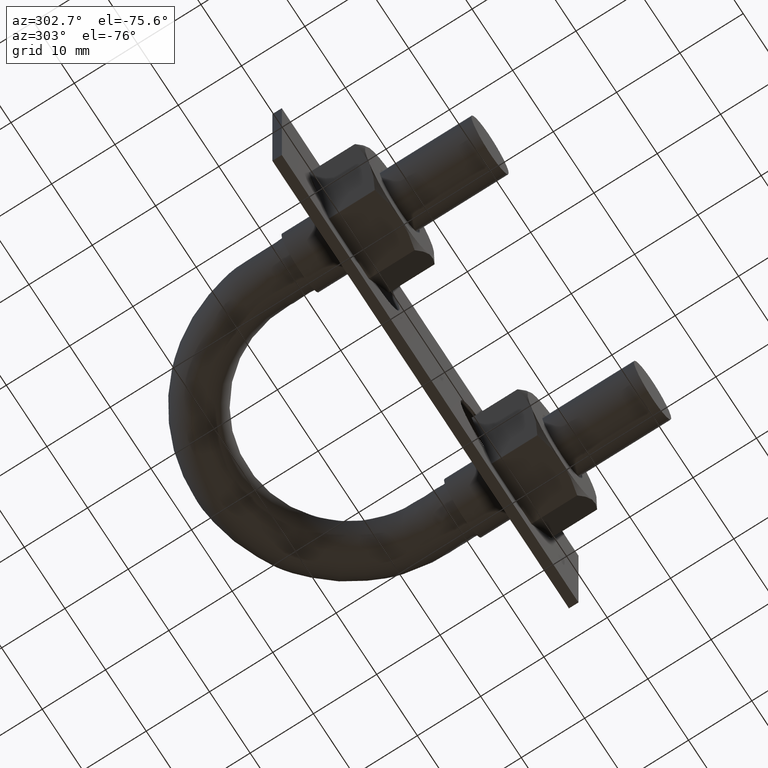
[diagram: clean part render]
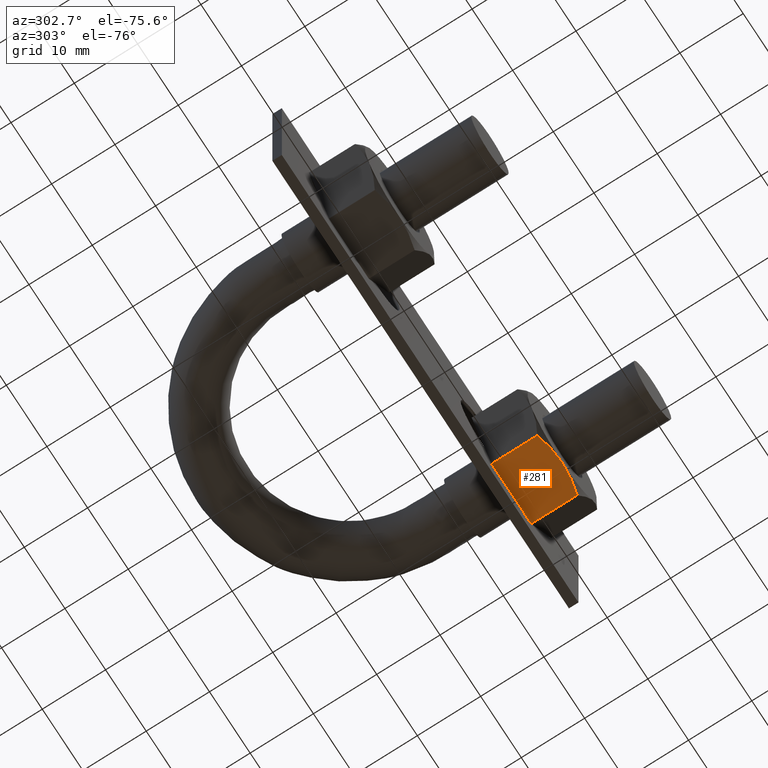
[diagram: same view with one face highlighted and labeled with its STEP entity id]
A machine part, auxiliary view. The second image highlights one B-rep face of the part: STEP entity #281.
In plain terms, the highlighted planar face has unit normal (-0, 0, 1).
Its self-contained STEP definition (entity closure, byte-faithful):
#281 = ADVANCED_FACE( '', ( #431 ), #432, .F. );
#431 = FACE_OUTER_BOUND( '', #751, .T. );
#432 = PLANE( '', #752 );
#751 = EDGE_LOOP( '', ( #1239, #1240, #1241, #1242, #1243 ) );
#752 = AXIS2_PLACEMENT_3D( '', #1244, #1245, #1246 );
#1239 = ORIENTED_EDGE( '', *, *, #1448, .F. );
#1240 = ORIENTED_EDGE( '', *, *, #1449, .F. );
#1241 = ORIENTED_EDGE( '', *, *, #1447, .F. );
#1242 = ORIENTED_EDGE( '', *, *, #1427, .F. );
#1243 = ORIENTED_EDGE( '', *, *, #1450, .F. );
#1244 = CARTESIAN_POINT( '', ( 24.9074772881118, -7.70000000000000, -8.50000000000000 ) );
#1245 = DIRECTION( '', ( -3.74915180455534E-033, 2.29561756065155E-049, 1.00000000000000 ) );
#1246 = DIRECTION( '', ( 6.12303176911189E-017, 1.00000000000000, 0.000000000000000 ) );
#1427 = EDGE_CURVE( '', #1675, #1677, #1678, .T. );
#1447 = EDGE_CURVE( '', #1677, #1705, #1707, .F. );
#1448 = EDGE_CURVE( '', #1645, #1708, #1709, .T. );
#1449 = EDGE_CURVE( '', #1705, #1645, #1710, .T. );
#1450 = EDGE_CURVE( '', #1708, #1675, #1711, .T. );
#1645 = VERTEX_POINT( '', #2057 );
#1675 = VERTEX_POINT( '', #2104 );
#1677 = VERTEX_POINT( '', #2106 );
#1678 = LINE( '', #2107, #2108 );
#1705 = VERTEX_POINT( '', #2173 );
#1707 = LINE( '', #2175, #2176 );
#1708 = VERTEX_POINT( '', #2177 );
#1709 = B_SPLINE_CURVE_WITH_KNOTS( '', 3, ( #2178, #2179, #2180, #2181, #2182, #2183 ), .UNSPECIFIED., .F., .F., ( 4, 2, 4 ), ( 0.0156840426092177, 0.0181633795370703, 0.0206427164649230 ), .UNSPECIFIED. );
#1710 = B_SPLINE_CURVE_WITH_KNOTS( '', 3, ( #2184, #2185, #2186, #2187, #2188, #2189 ), .UNSPECIFIED., .F., .F., ( 4, 2, 4 ), ( 0.0107224888714710, 0.0132032657403443, 0.0156840426092177 ), .UNSPECIFIED. );
#1711 = LINE( '', #2190, #2191 );
#2057 = CARTESIAN_POINT( '', ( 20.0000000000000, -15.7000000000000, -8.50000000000000 ) );
#2104 = CARTESIAN_POINT( '', ( 24.8774993593029, -7.70000000000000, -8.50000000000000 ) );
#2106 = CARTESIAN_POINT( '', ( 15.1225006406971, -7.70000000000000, -8.50000000000000 ) );
#2107 = CARTESIAN_POINT( '', ( 10.2000000000000, -7.70000000000000, -8.50000000000000 ) );
#2108 = VECTOR( '', #2429, 1000.00000000000 );
#2173 = CARTESIAN_POINT( '', ( 15.1225006406971, -14.9494446500535, -8.50000000000000 ) );
#2175 = CARTESIAN_POINT( '', ( 15.1225006406971, -7.70000000000000, -8.50000000000000 ) );
#2176 = VECTOR( '', #2454, 1000.00000000000 );
#2177 = CARTESIAN_POINT( '', ( 24.8774993593029, -14.9494446500535, -8.50000000000000 ) );
#2178 = CARTESIAN_POINT( '', ( 20.0000000000000, -15.7000000000000, -8.50000000000000 ) );
#2179 = CARTESIAN_POINT( '', ( 20.8345940408718, -15.7000000000000, -8.50000000000000 ) );
#2180 = CARTESIAN_POINT( '', ( 21.6590982732016, -15.6276895388738, -8.50000000000000 ) );
#2181 = CARTESIAN_POINT( '', ( 23.2828074229596, -15.3660056252267, -8.50000000000000 ) );
#2182 = CARTESIAN_POINT( '', ( 24.0838578122272, -15.1774971896907, -8.50000000000000 ) );
#2183 = CARTESIAN_POINT( '', ( 24.8774993593029, -14.9494446500535, -8.50000000000000 ) );
#2184 = CARTESIAN_POINT( '', ( 15.1225006406971, -14.9494446500535, -8.50000000000000 ) );
#2185 = CARTESIAN_POINT( '', ( 15.9171260670589, -15.1777799069586, -8.50000000000000 ) );
#2186 = CARTESIAN_POINT( '', ( 16.7187973776761, -15.3663452882827, -8.50000000000000 ) );
#2187 = CARTESIAN_POINT( '', ( 18.3426188305539, -15.6278850822183, -8.50000000000000 ) );
#2188 = CARTESIAN_POINT( '', ( 19.1649212463884, -15.7000000000000, -8.50000000000000 ) );
#2189 = CARTESIAN_POINT( '', ( 20.0000000000000, -15.7000000000000, -8.50000000000000 ) );
#2190 = CARTESIAN_POINT( '', ( 24.8774993593029, -7.70000000000000, -8.50000000000000 ) );
#2191 = VECTOR( '', #2455, 1000.00000000000 );
#2429 = DIRECTION( '', ( -1.00000000000000, 6.12303176911189E-017, -3.74915180455534E-033 ) );
#2454 = DIRECTION( '', ( 6.12303176911189E-017, 1.00000000000000, -4.95179021115217E-066 ) );
#2455 = DIRECTION( '', ( 6.12303176911189E-017, 1.00000000000000, -4.95179021115217E-066 ) );